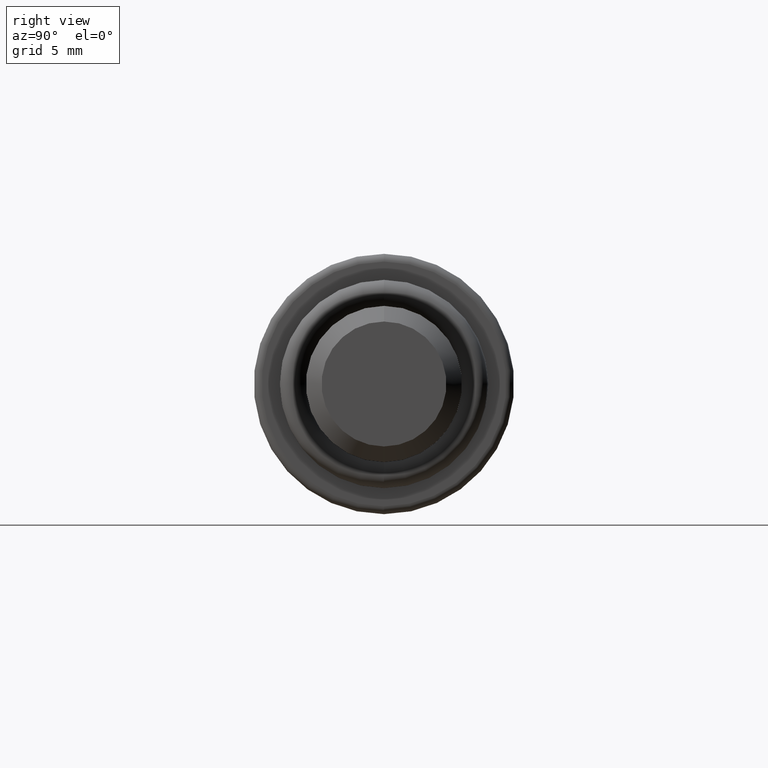
[diagram: clean part render]
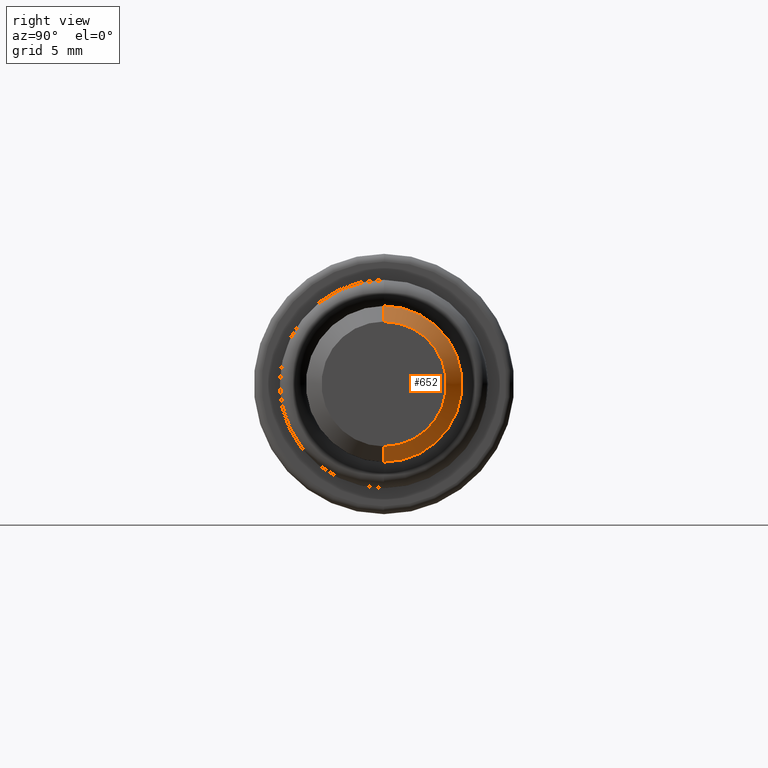
[diagram: same view with one face highlighted and labeled with its STEP entity id]
A machine part, right view. The second image highlights one B-rep face of the part: STEP entity #652.
In plain terms, the highlighted conical surface has half-angle 45 deg.
Its self-contained STEP definition (entity closure, byte-faithful):
#2 = VECTOR ( 'NONE', #228, 999.9999999999998900 ) ;
#34 = ORIENTED_EDGE ( 'NONE', *, *, #146, .F. ) ;
#65 = CARTESIAN_POINT ( 'NONE',  ( 19.39999999999999500, 3.673940397442060400E-016, -3.000000000000000400 ) ) ;
#138 = DIRECTION ( 'NONE',  ( 1.000000000000000000, 0.0000000000000000000, 0.0000000000000000000 ) ) ;
#146 = EDGE_CURVE ( 'NONE', #169, #613, #293, .T. ) ;
#152 = VECTOR ( 'NONE', #805, 999.9999999999998900 ) ;
#169 = VERTEX_POINT ( 'NONE', #455 ) ;
#194 = CONICAL_SURFACE ( 'NONE', #271, 2.399999999999995900, 0.7853981633974465000 ) ;
#228 = DIRECTION ( 'NONE',  ( -0.7071067811865489100, 0.0000000000000000000, 0.7071067811865462400 ) ) ;
#235 = CARTESIAN_POINT ( 'NONE',  ( 20.00000000000000000, 0.0000000000000000000, 0.0000000000000000000 ) ) ;
#248 = VERTEX_POINT ( 'NONE', #632 ) ;
#255 = DIRECTION ( 'NONE',  ( 0.0000000000000000000, 0.0000000000000000000, -1.000000000000000000 ) ) ;
#270 = EDGE_LOOP ( 'NONE', ( #411, #333, #34, #490 ) ) ;
#271 = AXIS2_PLACEMENT_3D ( 'NONE', #235, #377, #699 ) ;
#292 = DIRECTION ( 'NONE',  ( 0.0000000000000000000, 0.0000000000000000000, -1.000000000000000000 ) ) ;
#293 = CIRCLE ( 'NONE', #674, 3.000000000000000400 ) ;
#298 = CARTESIAN_POINT ( 'NONE',  ( 20.00000000000000000, 0.0000000000000000000, 2.399999999999995900 ) ) ;
#311 = VERTEX_POINT ( 'NONE', #298 ) ;
#312 = DIRECTION ( 'NONE',  ( -1.000000000000000000, 0.0000000000000000000, 0.0000000000000000000 ) ) ;
#319 = CARTESIAN_POINT ( 'NONE',  ( 19.39999999999999500, 0.0000000000000000000, 0.0000000000000000000 ) ) ;
#333 = ORIENTED_EDGE ( 'NONE', *, *, #755, .T. ) ;
#336 = LINE ( 'NONE', #492, #2 ) ;
#351 = LINE ( 'NONE', #788, #152 ) ;
#371 = FACE_OUTER_BOUND ( 'NONE', #270, .T. ) ;
#377 = DIRECTION ( 'NONE',  ( -1.000000000000000000, 0.0000000000000000000, 0.0000000000000000000 ) ) ;
#411 = ORIENTED_EDGE ( 'NONE', *, *, #431, .F. ) ;
#431 = EDGE_CURVE ( 'NONE', #248, #311, #790, .T. ) ;
#455 = CARTESIAN_POINT ( 'NONE',  ( 19.39999999999999500, 0.0000000000000000000, 3.000000000000000400 ) ) ;
#490 = ORIENTED_EDGE ( 'NONE', *, *, #548, .F. ) ;
#492 = CARTESIAN_POINT ( 'NONE',  ( 20.00000000000000000, 0.0000000000000000000, 2.399999999999995900 ) ) ;
#542 = CARTESIAN_POINT ( 'NONE',  ( 20.00000000000000000, 0.0000000000000000000, 0.0000000000000000000 ) ) ;
#548 = EDGE_CURVE ( 'NONE', #311, #169, #336, .T. ) ;
#613 = VERTEX_POINT ( 'NONE', #65 ) ;
#632 = CARTESIAN_POINT ( 'NONE',  ( 20.00000000000000000, 3.306546357697851300E-016, -2.399999999999995900 ) ) ;
#652 = ADVANCED_FACE ( 'NONE', ( #371 ), #194, .T. ) ;
#661 = AXIS2_PLACEMENT_3D ( 'NONE', #542, #138, #255 ) ;
#674 = AXIS2_PLACEMENT_3D ( 'NONE', #319, #312, #292 ) ;
#699 = DIRECTION ( 'NONE',  ( 0.0000000000000000000, 0.0000000000000000000, 1.000000000000000000 ) ) ;
#755 = EDGE_CURVE ( 'NONE', #248, #613, #351, .T. ) ;
#788 = CARTESIAN_POINT ( 'NONE',  ( 20.00000000000000000, 2.939152317953642700E-016, -2.399999999999995900 ) ) ;
#790 = CIRCLE ( 'NONE', #661, 2.399999999999995900 ) ;
#805 = DIRECTION ( 'NONE',  ( -0.7071067811865489100, 8.659560562354915600E-017, -0.7071067811865462400 ) ) ;